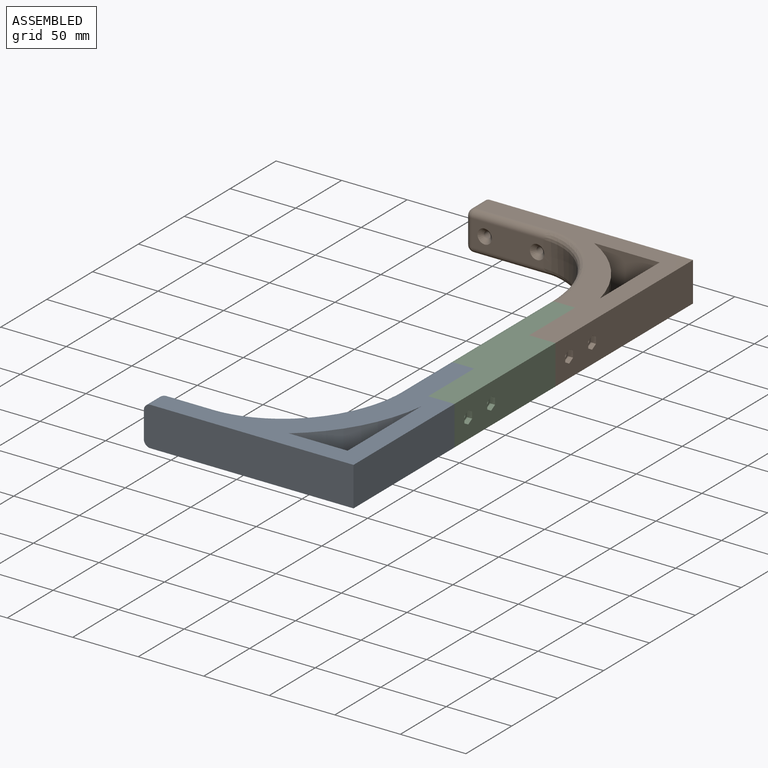
[diagram: assembled view]
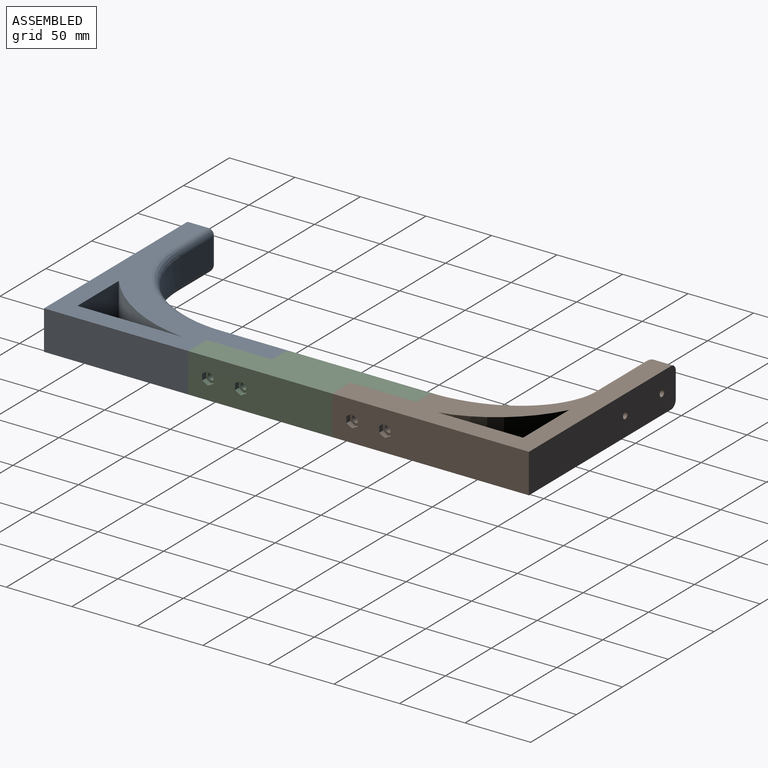
[diagram: assembled view, second angle]
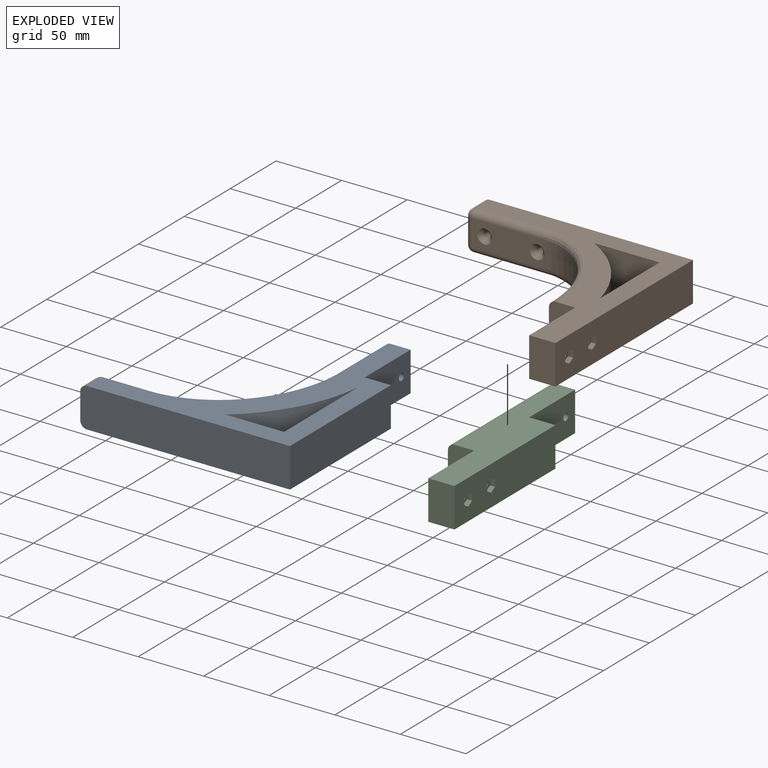
[diagram: exploded view]
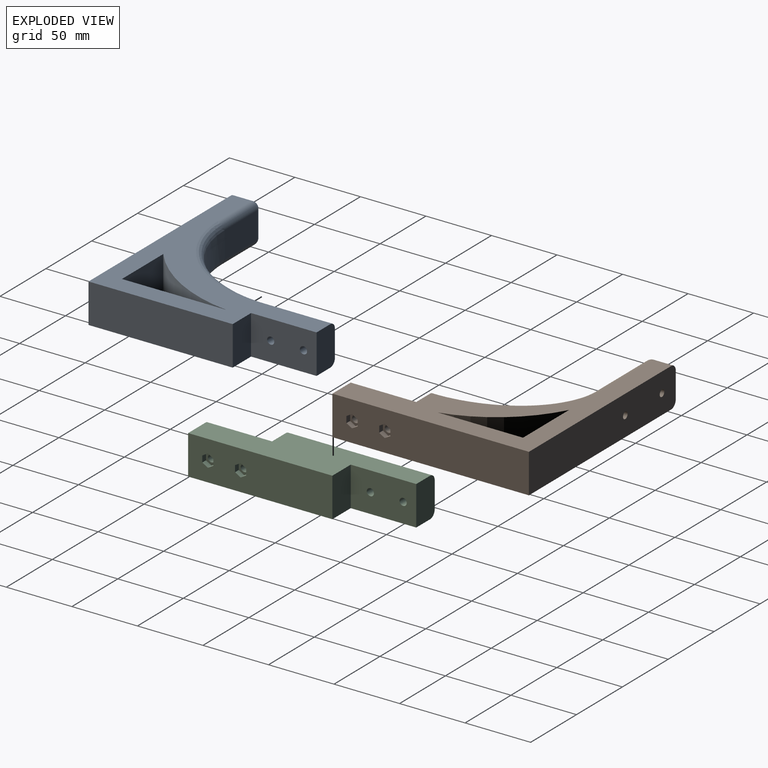
[diagram: exploded view, second angle]
ASSEMBLY  parts=3 mates=2
PART A: 29 faces, bbox 160x160x30 mm
  f0: plane 160x155mm, normal (0,0,1), area 6895.2mm2, adj f2,f3,f4,f9,f10,f13,f14,f15
  f1: plane 160x155mm, normal (0,0,-1), area 6895mm2, adj f2,f3,f4,f9,f10,f13,f14,f15
  f2: plane 30x20mm, normal (0,1,0), area 600mm2, adj f0,f1,f3,f10
  f3: plane 50x30mm, normal (1,0,0), area 1452.5mm2, adj f0,f1,f2,f4,f11,f12
  f4: plane 30x20mm, normal (0,1,0), area 589.3mm2, adj f0,f1,f3,f5,f16,f26
  f5: plane 50x20mm, normal (-1,0,0), area 792.3mm2, adj f4,f6,f16,f26,f27,f28
  f6: extruded ~90x80mm, area 2672.7mm2, adj f5,f7,f17,f25
  f7: plane 35x20mm, normal (0,1,0), area 700mm2, adj f6,f18,f21,f24
  f8: plane 20x15mm, normal (-1,0,0), area 300mm2, adj f9,f19,f21,f22
  f9: plane 160x30mm, normal (0,-1,0), area 4789.3mm2, adj f0,f1,f8,f10,f19,f22
  f10: plane 110x30mm, normal (1,0,0), area 3300mm2, adj f0,f1,f2,f9
  f11: cylinder r=2.75mm len=17mm, axis (1,0,0), area 293.7mm2, adj f3,f27
  f12: cylinder r=2.75mm len=17mm, axis (1,0,0), area 293.7mm2, adj f3,f28
  f13: cylinder r=120mm len=80mm, axis (0,0,-1), area 2825.6mm2, adj f0,f1,f14,f15
  f14: plane 80x30mm, normal (-1,0,0), area 2400mm2, adj f0,f1,f13,f15
  f15: plane 45x30mm, normal (0,1,0), area 1350mm2, adj f0,f1,f13,f14
  f16: cylinder r=5mm len=50mm, axis (0,1,0), area 392.7mm2, adj f0,f4,f5,f17
  f17: bspline ~106.21x93.73mm, area 1071.9mm2, adj f0,f6,f16,f18
  f18: cylinder r=5mm len=35mm, axis (1,0,0), area 274.9mm2, adj f0,f7,f17,f20
  f19: cylinder r=5mm len=15mm, axis (0,1,0), area 117.8mm2, adj f0,f8,f9,f20
  f20: sphere r=5mm, area 39.3mm2, adj f18,f19,f21
  f21: cylinder r=5mm len=20mm, axis (0,0,-1), area 157.1mm2, adj f7,f8,f20,f23
  f22: cylinder r=5mm len=15mm, axis (0,-1,0), area 117.8mm2, adj f1,f8,f9,f23
  f23: sphere r=5mm, area 39.3mm2, adj f21,f22,f24
  f24: cylinder r=5mm len=35mm, axis (-1,0,0), area 274.9mm2, adj f1,f7,f23,f25
  f25: bspline ~106.21x93.73mm, area 1072mm2, adj f1,f6,f24,f26
  f26: cylinder r=5mm len=50mm, axis (0,-1,0), area 392.7mm2, adj f1,f4,f5,f25
  f27: cone r=2.75mm half-angle=45deg, axis (-1,0,0), area 113.3mm2, adj f5,f11
  f28: cone r=2.75mm half-angle=45deg, axis (-1,0,0), area 113.3mm2, adj f5,f12
PART B: 43 faces, bbox 160.2x150.2x30.2 mm
  f0: plane 150x30mm, normal (1,0,0), area 4374.9mm2, adj f1,f2,f6,f7,f29,f30,f31,f32
  f1: plane 155x150mm, normal (0,0,1), area 6342.8mm2, adj f0,f4,f5,f6,f7,f14,f15,f16
  f2: plane 155x150mm, normal (0,0,-1), area 6342.8mm2, adj f0,f4,f5,f6,f7,f14,f15,f16
  f3: extruded ~80x60mm, area 2208.9mm2, adj f4,f9,f18,f20,f28
  f4: plane 30.16x20.16mm, normal (0,-1,0), area 589.3mm2, adj f1,f2,f3,f5,f20,f28
  f5: plane 50x30mm, normal (-1,0,0), area 1452.5mm2, adj f1,f2,f4,f6,f12,f13
  f6: plane 30x20mm, normal (0,-1,0), area 600mm2, adj f0,f1,f2,f5
  f7: plane 160x30mm, normal (0,1,0), area 4750mm2, adj f0,f1,f2,f8,f10,f11,f21,f24
  f8: plane 20x15mm, normal (-1,0,0), area 300mm2, adj f7,f21,f24,f25
  f9: plane 55x20mm, normal (0,-1,0), area 911.5mm2, adj f3,f17,f19,f22,f25,f27
  f10: cylinder r=2.5mm len=17mm, axis (0,-1,0), area 267mm2, adj f7,f17,f18
  f11: cylinder r=2.5mm len=17mm, axis (0,-1,0), area 267mm2, adj f7,f19
  f12: cylinder r=2.75mm len=16mm, axis (-1,0,0), area 276.5mm2, adj f5,f42
  f13: cylinder r=2.75mm len=16mm, axis (-1,0,0), area 276.5mm2, adj f5,f35
  f14: cylinder r=100mm len=65mm, axis (0,0,-1), area 2534.9mm2, adj f1,f2,f15,f16
  f15: plane 50x30mm, normal (0,-1,0), area 1500mm2, adj f1,f2,f14,f16
  f16: plane 65x30mm, normal (-1,0,0), area 1950mm2, adj f1,f2,f14,f15
  f17: cone r=2.5mm half-angle=45deg, axis (0,-1,0), area 92mm2, adj f9,f10,f18
  f18: bspline ~4.58x3.35mm, area 14.5mm2, adj f3,f10,f17
  f19: cone r=2.5mm half-angle=45deg, axis (0,-1,0), area 106.6mm2, adj f9,f11
  f20: bspline ~94.38x71.86mm, area 890.4mm2, adj f1,f3,f4,f22
  f21: cylinder r=5mm len=15mm, axis (0,1,0), area 117.8mm2, adj f1,f7,f8,f23
  f22: cylinder r=5mm len=55mm, axis (-1,0,0), area 432mm2, adj f1,f9,f20,f23
  f23: sphere r=5mm, area 39.3mm2, adj f21,f22,f25
  f24: cylinder r=5mm len=15mm, axis (0,-1,0), area 117.8mm2, adj f2,f7,f8,f26
  f25: cylinder r=5mm len=20mm, axis (0,0,-1), area 157.1mm2, adj f8,f9,f23,f26
  f26: sphere r=5mm, area 39.3mm2, adj f24,f25,f27
  f27: cylinder r=5mm len=55mm, axis (1,0,0), area 432mm2, adj f2,f9,f26,f28
  f28: bspline ~94.38x71.86mm, area 890.4mm2, adj f2,f3,f4,f27
  f29: plane 4.25x4mm, normal (0,-0.5,-0.87), area 19.6mm2, adj f0,f30,f34,f35
  f30: plane 4.25x4mm, normal (0,0.5,-0.87), area 19.6mm2, adj f0,f29,f31,f35
  f31: plane 4.91x4mm, normal (0,1,0), area 19.6mm2, adj f0,f30,f32,f35
  f32: plane 4.25x4mm, normal (0,0.5,0.87), area 19.6mm2, adj f0,f31,f33,f35
  f33: plane 4.25x4mm, normal (0,-0.5,0.87), area 19.6mm2, adj f0,f32,f34,f35
  f34: plane 4.91x4mm, normal (0,-1,0), area 19.6mm2, adj f0,f29,f33,f35
  f35: plane 9.82x8.5mm, normal (1,0,0), area 38.8mm2, adj f13,f29,f30,f31,f32,f33,f34
  f36: plane 4.25x4mm, normal (0,-0.5,-0.87), area 19.6mm2, adj f0,f37,f41,f42
  f37: plane 4.25x4mm, normal (0,0.5,-0.87), area 19.6mm2, adj f0,f36,f38,f42
  f38: plane 4.91x4mm, normal (0,1,0), area 19.6mm2, adj f0,f37,f39,f42
  f39: plane 4.25x4mm, normal (0,0.5,0.87), area 19.6mm2, adj f0,f38,f40,f42
  f40: plane 4.25x4mm, normal (0,-0.5,0.87), area 19.6mm2, adj f0,f39,f41,f42
  f41: plane 4.91x4mm, normal (0,-1,0), area 19.6mm2, adj f0,f36,f40,f42
  f42: plane 9.82x8.5mm, normal (1,0,0), area 38.8mm2, adj f12,f36,f37,f38,f39,f40,f41
PART C: 32 faces, bbox 40x160.1x30 mm
  f0: plane 110x30mm, normal (1,0,0), area 3174.9mm2, adj f8,f9,f10,f11,f13,f14,f15,f16
  f1: cylinder r=2.75mm len=16mm, axis (-1,0,0), area 276.5mm2, adj f7,f19
  f2: cylinder r=2.75mm len=16mm, axis (-1,0,0), area 276.5mm2, adj f7,f12
  f3: plane 50x30mm, normal (1,0,0), area 1452.5mm2, adj f4,f9,f10,f11,f26,f27
  f4: plane 30.01x20.01mm, normal (0,1,0), area 589.3mm2, adj f3,f5,f10,f11,f30,f31
  f5: plane 110.1x20mm, normal (-1,0,0), area 1994.2mm2, adj f4,f6,f28,f29,f30,f31
  f6: plane 30x20mm, normal (0,-1,0), area 589.3mm2, adj f5,f7,f10,f11,f30,f31
  f7: plane 50x30mm, normal (-1,0,0), area 1452.5mm2, adj f1,f2,f6,f8,f10,f11
  f8: plane 30x20mm, normal (0,-1,0), area 600mm2, adj f0,f7,f10,f11
  f9: plane 30x20mm, normal (0,1,0), area 600mm2, adj f0,f3,f10,f11
  f10: plane 160.07x35mm, normal (0,0,1), area 3850.5mm2, adj f0,f3,f4,f6,f7,f8,f9,f31
  f11: plane 160.07x35mm, normal (0,0,-1), area 3850.5mm2, adj f0,f3,f4,f6,f7,f8,f9,f30
  f12: plane 9.82x8.5mm, normal (1,0,0), area 38.8mm2, adj f2,f13,f14,f15,f16,f17,f18
  f13: plane 4.25x4mm, normal (0,-0.5,-0.87), area 19.6mm2, adj f0,f12,f14,f18
  f14: plane 4.25x4mm, normal (0,0.5,-0.87), area 19.6mm2, adj f0,f12,f13,f15
  f15: plane 4.91x4mm, normal (0,1,0), area 19.6mm2, adj f0,f12,f14,f16
  f16: plane 4.25x4mm, normal (0,0.5,0.87), area 19.6mm2, adj f0,f12,f15,f17
  f17: plane 4.25x4mm, normal (0,-0.5,0.87), area 19.6mm2, adj f0,f12,f16,f18
  f18: plane 4.91x4mm, normal (0,-1,0), area 19.6mm2, adj f0,f12,f13,f17
  f19: plane 9.82x8.5mm, normal (1,0,0), area 38.8mm2, adj f1,f20,f21,f22,f23,f24,f25
  f20: plane 4.25x4mm, normal (0,-0.5,-0.87), area 19.6mm2, adj f0,f19,f21,f25
  f21: plane 4.25x4mm, normal (0,0.5,-0.87), area 19.6mm2, adj f0,f19,f20,f22
  f22: plane 4.91x4mm, normal (0,1,0), area 19.6mm2, adj f0,f19,f21,f23
  f23: plane 4.25x4mm, normal (0,0.5,0.87), area 19.6mm2, adj f0,f19,f22,f24
  f24: plane 4.25x4mm, normal (0,-0.5,0.87), area 19.6mm2, adj f0,f19,f23,f25
  f25: plane 4.91x4mm, normal (0,-1,0), area 19.6mm2, adj f0,f19,f20,f24
  f26: cylinder r=2.75mm len=17mm, axis (1,0,0), area 293.7mm2, adj f3,f29
  f27: cylinder r=2.75mm len=17mm, axis (1,0,0), area 293.7mm2, adj f3,f28
  f28: cone r=5.75mm half-angle=45deg, axis (-1,0,0), area 113.3mm2, adj f5,f27
  f29: cone r=5.75mm half-angle=45deg, axis (-1,0,0), area 113.3mm2, adj f5,f26
  f30: cylinder r=5mm len=110.1mm, axis (0,-1,0), area 864.6mm2, adj f4,f5,f6,f11
  f31: cylinder r=5mm len=110.1mm, axis (0,1,0), area 864.6mm2, adj f4,f5,f6,f10
PLACE A t=(101.39,259.9,-0.26)mm
PLACE B t=(53.64,86.16,-0.26)mm
PLACE C t=(55.69,107.68,-0.26)mm
MATE fastened A.f12 <-> C.f2  axis (1,0,0) through (91.5,-53.24,14.74)mm
MATE fastened B.f13 <-> C.f26  axis (-1,0,0) through (91.5,56.76,14.74)mm
